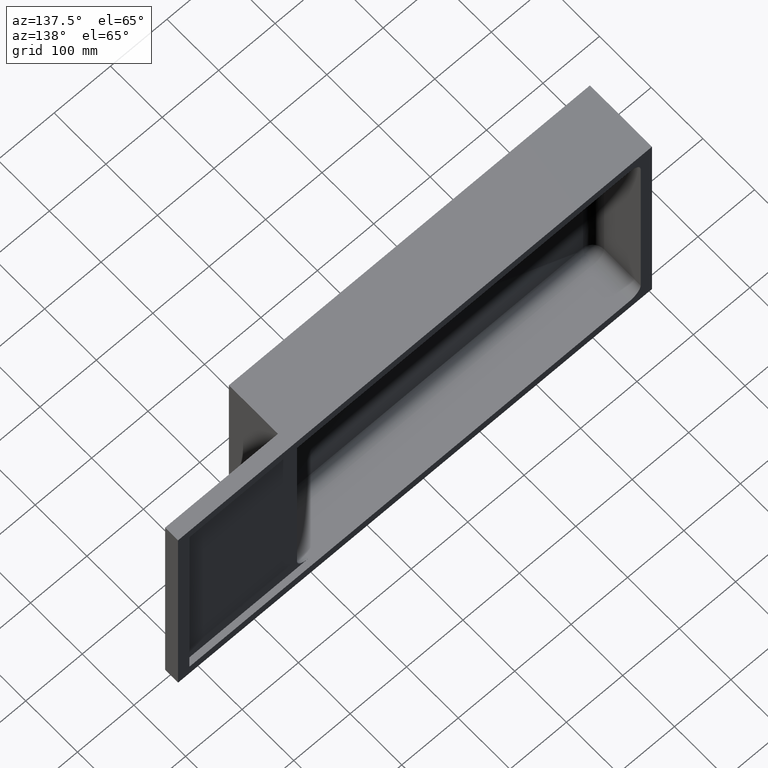
[diagram: clean part render]
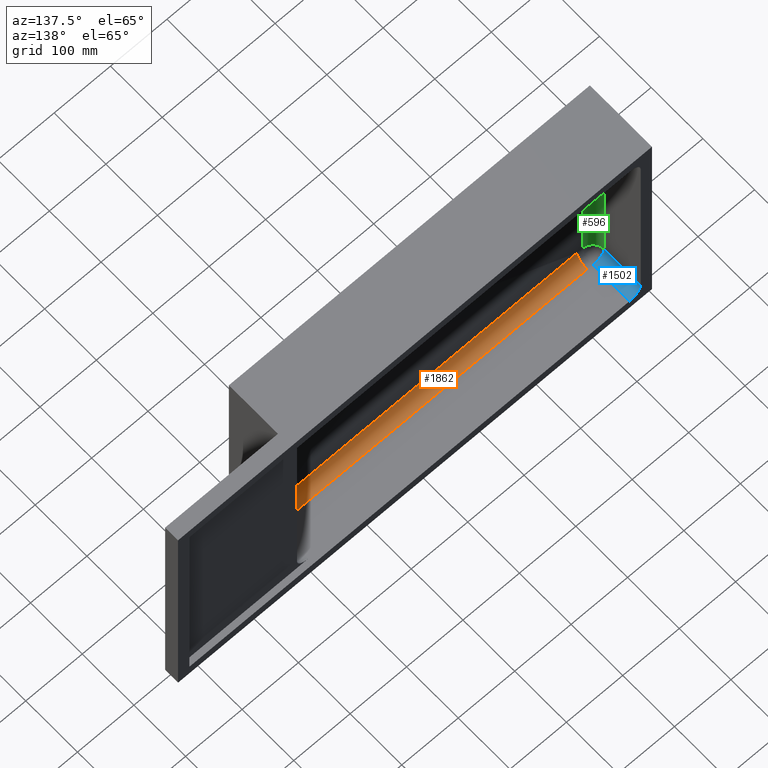
[diagram: same view with three faces highlighted in distinct colors, each labeled with its STEP entity id]
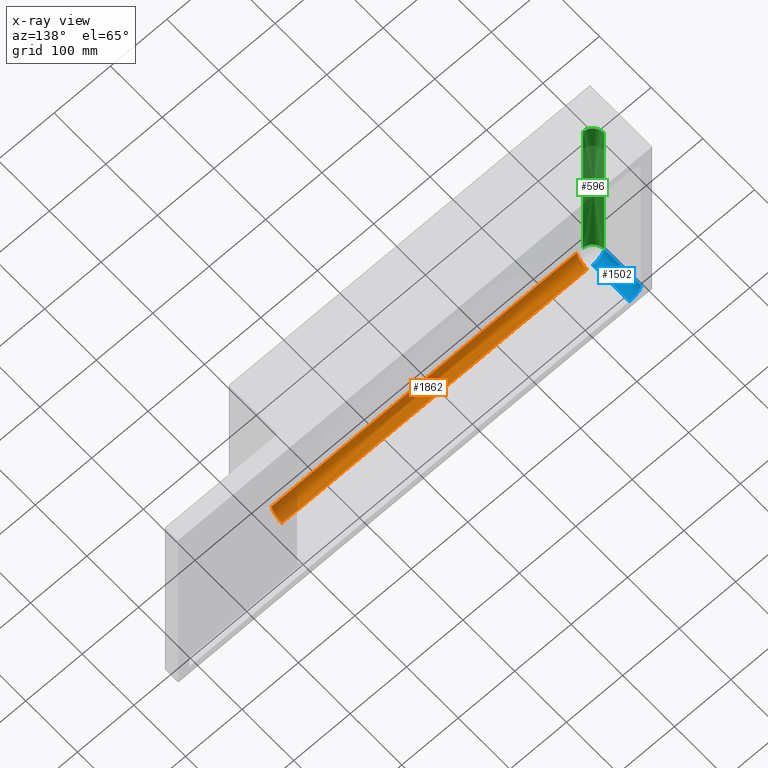
[diagram: x-ray of the same camera — body ghosted, the three highlighted faces saturated]
A machine part, auxiliary view with three faces highlighted in distinct colors.
The next image is the same camera in x-ray (body ghosted, the three faces saturated) — at least one of them is partly hidden behind the body in this view.
Their STEP definitions:

[orange] entity #1862 — the highlighted face is a freeform B-spline surface patch.
#37 = CARTESIAN_POINT ( 'NONE',  ( 139.6214174718604681, 48.62551107600921796, -420.0000000000001137 ) ) ;
#77 = DIRECTION ( 'NONE',  ( -0.9999999230467002675, 0.0003923093085508458713, -0.0000000000000000000 ) ) ;
#86 = CARTESIAN_POINT ( 'NONE',  ( 229.8107049548678162, 48.58877967900190953, -420.0000000000000568 ) ) ;
#250 = DIRECTION ( 'NONE',  ( -0.0003923093085500539701, 0.9999999230467002675, 0.0000000000000000000 ) ) ;
#265 = CARTESIAN_POINT ( 'NONE',  ( 139.6214175273045157, 48.62551107585181143, -420.0000000000000568 ) ) ;
#274 = CARTESIAN_POINT ( 'NONE',  ( 590.5751947692087924, 29.98909426689062840, -419.9999999999999432 ) ) ;
#318 = EDGE_CURVE ( 'NONE', #619, #2076, #2284, .T. ) ;
#386 = CARTESIAN_POINT ( 'NONE',  ( 49.43213035187435622, 48.66089317560069816, -420.0000000000000568 ) ) ;
#387 = CARTESIAN_POINT ( 'NONE',  ( 49.42430265473844742, 28.70802346306557951, -401.3721985868512547 ) ) ;
#421 =( BOUNDED_SURFACE ( )  B_SPLINE_SURFACE ( 3, 2, ( 
 ( #443, #1188, #1933 ),
 ( #265, #1007, #1744 ),
 ( #86, #818, #1560 ),
 ( #2308, #636, #1376 ),
 ( #2125, #455, #1197 ),
 ( #1943, #274, #1015 ) ),
 .UNSPECIFIED., .F., .F., .T. ) 
 B_SPLINE_SURFACE_WITH_KNOTS ( ( 4, 2, 4 ),
 ( 3, 3 ),
 ( 0.09382550108589217397, 0.3643933832699478015, 0.6349612654540034429 ),
 ( 0.0000000000000000000, 1.000000000000000000 ),
 .UNSPECIFIED. ) 
 GEOMETRIC_REPRESENTATION_ITEM ( )  RATIONAL_B_SPLINE_SURFACE ( (
 ( 1.000000000000000000, 0.7309616711369185671, 1.000000000000000000),
 ( 1.000000000000000000, 0.7316704443245953815, 1.000000000000000000),
 ( 1.000000000000000000, 0.7324765506887280786, 1.000000000000000000),
 ( 1.000000000000000000, 0.7324765506887280786, 1.000000000000000000),
 ( 1.000000000000000000, 0.7316704443245929390, 1.000000000000000000),
 ( 1.000000000000000000, 0.7309616711369203435, 1.000000000000000000) ) ) 
 REPRESENTATION_ITEM ( '' )  SURFACE ( )  );
#443 = CARTESIAN_POINT ( 'NONE',  ( 49.43213035187426385, 48.66089317560069816, -420.0000000000000568 ) ) ;
#455 = CARTESIAN_POINT ( 'NONE',  ( 500.4738899062993482, 29.99232069777427512, -420.0000000100032480 ) ) ;
#567 = CARTESIAN_POINT ( 'NONE',  ( 410.1919054622273393, 28.64220499501312034, -401.4608758922395850 ) ) ;
#584 = CARTESIAN_POINT ( 'NONE',  ( 590.5678696481256793, 48.66089317560069816, -419.9999999999999432 ) ) ;
#619 = VERTEX_POINT ( 'NONE', #386 ) ;
#636 = CARTESIAN_POINT ( 'NONE',  ( 410.1938669815074263, 30.00000000453711380, -419.9999999949936296 ) ) ;
#771 = CARTESIAN_POINT ( 'NONE',  ( 229.8107049560396717, 48.58877967900191663, -420.0000000000002842 ) ) ;
#807 = DIRECTION ( 'NONE',  ( 0.0003923093085507478595, 0.9999999230467002675, 0.0000000000000000000 ) ) ;
#818 = CARTESIAN_POINT ( 'NONE',  ( 229.8061330184910105, 29.99999999546281160, -420.0000000050065410 ) ) ;
#916 = AXIS2_PLACEMENT_3D ( 'NONE', #1731, #77, #807 ) ;
#917 = EDGE_LOOP ( 'NONE', ( #990, #2399, #2292, #2397 ) ) ;
#962 = EDGE_CURVE ( 'NONE', #1529, #1839, #1380, .T. ) ;
#990 = ORIENTED_EDGE ( 'NONE', *, *, #1271, .F. ) ;
#1007 = CARTESIAN_POINT ( 'NONE',  ( 139.5261100937005665, 29.99232072528331727, -419.9999999949982907 ) ) ;
#1015 = CARTESIAN_POINT ( 'NONE',  ( 590.5756973452486136, 28.70802346306557595, -401.3721985868510842 ) ) ;
#1038 = B_SPLINE_CURVE_WITH_KNOTS ( 'NONE', 3,
 ( #1692, #37, #771, #1509, #2259, #584 ),
 .UNSPECIFIED., .F., .F.,
 ( 4, 2, 4 ),
 ( 0.02943213257703587715, 0.3000000147504363057, 0.5705678969238368037 ),
 .UNSPECIFIED. ) ;
#1043 = B_SPLINE_CURVE_WITH_KNOTS ( 'NONE', 3,
 ( #1492, #2242, #567, #1309, #2056, #387 ),
 .UNSPECIFIED., .F., .F.,
 ( 4, 2, 4 ),
 ( 0.001481527144366978502, 0.2720572525340454462, 0.5426329779237237805 ),
 .UNSPECIFIED. ) ;
#1067 = AXIS2_PLACEMENT_3D ( 'NONE', #1172, #1915, #250 ) ;
#1131 = CARTESIAN_POINT ( 'NONE',  ( 49.42430265473844742, 28.70802346306557951, -401.3721985868512547 ) ) ;
#1172 = CARTESIAN_POINT ( 'NONE',  ( 590.5678696481256793, 48.66089317560069816, -400.0000000000000568 ) ) ;
#1188 = CARTESIAN_POINT ( 'NONE',  ( 49.42480523079131416, 29.98909426689053248, -420.0000000000000568 ) ) ;
#1197 = CARTESIAN_POINT ( 'NONE',  ( 500.3870904029905660, 28.67547251339612302, -401.4133619008571259 ) ) ;
#1271 = EDGE_CURVE ( 'NONE', #1529, #2076, #1043, .T. ) ;
#1309 = CARTESIAN_POINT ( 'NONE',  ( 229.8080952572782110, 28.64220499485291072, -401.4608758924691756 ) ) ;
#1376 = CARTESIAN_POINT ( 'NONE',  ( 410.1942009308504566, 28.64220499475149140, -401.4608758898758083 ) ) ;
#1380 = CIRCLE ( 'NONE', #1067, 20.00000000000000000 ) ;
#1492 = CARTESIAN_POINT ( 'NONE',  ( 590.5756973452487273, 28.70802346306558661, -401.3721985868512547 ) ) ;
#1509 = CARTESIAN_POINT ( 'NONE',  ( 410.1892950439587935, 48.58877967900188821, -420.0000000000000000 ) ) ;
#1529 = VERTEX_POINT ( 'NONE', #1707 ) ;
#1558 = EDGE_CURVE ( 'NONE', #619, #1839, #1038, .T. ) ;
#1560 = CARTESIAN_POINT ( 'NONE',  ( 229.8057990691480086, 28.64220499511453966, -401.4608758948328955 ) ) ;
#1692 = CARTESIAN_POINT ( 'NONE',  ( 49.43213035187435622, 48.66089317560069816, -420.0000000000000568 ) ) ;
#1707 = CARTESIAN_POINT ( 'NONE',  ( 590.5756973452487273, 28.70802346306558661, -401.3721985868512547 ) ) ;
#1721 = CARTESIAN_POINT ( 'NONE',  ( 590.5678696481256793, 48.66089317560069816, -419.9999999999999432 ) ) ;
#1731 = CARTESIAN_POINT ( 'NONE',  ( 49.43213035187422832, 48.66089317560069816, -400.0000000000000000 ) ) ;
#1744 = CARTESIAN_POINT ( 'NONE',  ( 139.6129095970134699, 28.67547251271443542, -401.4133618909421557 ) ) ;
#1839 = VERTEX_POINT ( 'NONE', #1721 ) ;
#1862 = ADVANCED_FACE ( 'NONE', ( #2113 ), #421, .F. ) ;
#1915 = DIRECTION ( 'NONE',  ( 0.9999999230467002675, 0.0003923093085504811999, -0.0000000000000000000 ) ) ;
#1933 = CARTESIAN_POINT ( 'NONE',  ( 49.42430265475137219, 28.70802346306557240, -401.3721985868511410 ) ) ;
#1943 = CARTESIAN_POINT ( 'NONE',  ( 590.5678696481256793, 48.66089317560069816, -419.9999999999999432 ) ) ;
#2056 = CARTESIAN_POINT ( 'NONE',  ( 139.6161964801647457, 28.67547132688467926, -401.4133633980271156 ) ) ;
#2076 = VERTEX_POINT ( 'NONE', #1131 ) ;
#2113 = FACE_OUTER_BOUND ( 'NONE', #917, .T. ) ;
#2125 = CARTESIAN_POINT ( 'NONE',  ( 500.3785824726969622, 48.62551107521924365, -419.9999999999999432 ) ) ;
#2242 = CARTESIAN_POINT ( 'NONE',  ( 500.3838041494443019, 28.67547132711193214, -401.4133633977399995 ) ) ;
#2259 = CARTESIAN_POINT ( 'NONE',  ( 500.3785825281395887, 48.62551107600920375, -420.0000000000000000 ) ) ;
#2284 = CIRCLE ( 'NONE', #916, 20.00000000000000000 ) ;
#2292 = ORIENTED_EDGE ( 'NONE', *, *, #1558, .F. ) ;
#2308 = CARTESIAN_POINT ( 'NONE',  ( 410.1892950451306206, 48.58877967900190953, -420.0000000000000568 ) ) ;
#2397 = ORIENTED_EDGE ( 'NONE', *, *, #318, .T. ) ;
#2399 = ORIENTED_EDGE ( 'NONE', *, *, #962, .T. ) ;

[blue] entity #1502 — the highlighted cylindrical surface (edge-blend (fillet) strip) has radius 20 mm, axis along (0, -1, 0).
#14 = VERTEX_POINT ( 'NONE', #1062 ) ;
#16 = ORIENTED_EDGE ( 'NONE', *, *, #485, .F. ) ;
#42 = DIRECTION ( 'NONE',  ( 0.0000000000000000000, -1.000000000000000000, 0.0000000000000000000 ) ) ;
#202 = CARTESIAN_POINT ( 'NONE',  ( 39.99999999999999289, 49.09846963104313744, -420.0000000000000568 ) ) ;
#231 = DIRECTION ( 'NONE',  ( 0.0000000000000000000, 0.0000000000000000000, -1.000000000000000000 ) ) ;
#290 = AXIS2_PLACEMENT_3D ( 'NONE', #1154, #1899, #231 ) ;
#384 = CARTESIAN_POINT ( 'NONE',  ( 20.00000000000000000, 120.0000000000000000, -400.0000000000000000 ) ) ;
#409 = CYLINDRICAL_SURFACE ( 'NONE', #290, 20.00000000000001776 ) ;
#426 = DIRECTION ( 'NONE',  ( 0.0000000000000000000, 1.000000000000000000, 0.0000000000000000000 ) ) ;
#485 = EDGE_CURVE ( 'NONE', #14, #1328, #1870, .T. ) ;
#663 = EDGE_CURVE ( 'NONE', #1362, #2075, #789, .T. ) ;
#676 = AXIS2_PLACEMENT_3D ( 'NONE', #2012, #900, #1642 ) ;
#717 = VECTOR ( 'NONE', #943, 1000.000000000000000 ) ;
#775 = DIRECTION ( 'NONE',  ( 0.0000000000000000000, 0.0000000000000000000, -1.000000000000000000 ) ) ;
#789 = LINE ( 'NONE', #2095, #834 ) ;
#834 = VECTOR ( 'NONE', #426, 1000.000000000000000 ) ;
#900 = DIRECTION ( 'NONE',  ( 0.0000000000000000000, 1.000000000000000000, 0.0000000000000000000 ) ) ;
#911 = CIRCLE ( 'NONE', #1966, 20.00000000000001776 ) ;
#943 = DIRECTION ( 'NONE',  ( -0.0000000000000000000, -1.000000000000000000, -0.0000000000000000000 ) ) ;
#998 = CIRCLE ( 'NONE', #676, 20.00000000000001776 ) ;
#1062 = CARTESIAN_POINT ( 'NONE',  ( 40.00000000000003553, 120.0000000000000000, -420.0000000000000568 ) ) ;
#1084 = CARTESIAN_POINT ( 'NONE',  ( 39.99999999999999289, 49.09616694392557434, -420.0000000000000568 ) ) ;
#1096 = CARTESIAN_POINT ( 'NONE',  ( 20.00000000000001066, 49.09616694392557434, -400.0000000000000000 ) ) ;
#1154 = CARTESIAN_POINT ( 'NONE',  ( 39.99999999999999289, -721.1102550927979564, -400.0000000000000000 ) ) ;
#1179 = EDGE_CURVE ( 'NONE', #1328, #1362, #998, .T. ) ;
#1304 = ORIENTED_EDGE ( 'NONE', *, *, #1486, .F. ) ;
#1328 = VERTEX_POINT ( 'NONE', #1084 ) ;
#1362 = VERTEX_POINT ( 'NONE', #1096 ) ;
#1486 = EDGE_CURVE ( 'NONE', #2075, #14, #911, .T. ) ;
#1496 = ORIENTED_EDGE ( 'NONE', *, *, #1179, .F. ) ;
#1502 = ADVANCED_FACE ( 'NONE', ( #1513 ), #409, .F. ) ;
#1513 = FACE_OUTER_BOUND ( 'NONE', #1599, .T. ) ;
#1562 = ORIENTED_EDGE ( 'NONE', *, *, #663, .F. ) ;
#1599 = EDGE_LOOP ( 'NONE', ( #1304, #1562, #1496, #16 ) ) ;
#1642 = DIRECTION ( 'NONE',  ( 0.0000000000000000000, 0.0000000000000000000, 1.000000000000000000 ) ) ;
#1697 = CARTESIAN_POINT ( 'NONE',  ( 39.99999999999999289, 120.0000000000000000, -400.0000000000000000 ) ) ;
#1870 = LINE ( 'NONE', #202, #717 ) ;
#1899 = DIRECTION ( 'NONE',  ( 0.0000000000000000000, -1.000000000000000000, 0.0000000000000000000 ) ) ;
#1966 = AXIS2_PLACEMENT_3D ( 'NONE', #1697, #42, #775 ) ;
#2012 = CARTESIAN_POINT ( 'NONE',  ( 39.99999999999999289, 49.09616694392557434, -400.0000000000000000 ) ) ;
#2075 = VERTEX_POINT ( 'NONE', #384 ) ;
#2095 = CARTESIAN_POINT ( 'NONE',  ( 20.00000000000000000, 119.9999999999997726, -400.0000000000000000 ) ) ;

[green] entity #596 — the highlighted face is a freeform B-spline surface patch.
#18 = CARTESIAN_POINT ( 'NONE',  ( 20.00000000000001776, 49.08939118332454399, -340.0000001822882041 ) ) ;
#26 = EDGE_CURVE ( 'NONE', #1962, #2402, #408, .T. ) ;
#137 = DIRECTION ( 'NONE',  ( 0.0000000000000000000, 0.0001129293350880268679, 0.9999999936234827969 ) ) ;
#153 = CARTESIAN_POINT ( 'NONE',  ( 20.00000000000000711, 49.08939118379863942, -99.99999980915740139 ) ) ;
#194 = CARTESIAN_POINT ( 'NONE',  ( 19.99999999999999289, 49.08499730588280130, -280.0000002268363914 ) ) ;
#370 = CARTESIAN_POINT ( 'NONE',  ( 19.99999999999999289, 49.08499730588280130, -159.9999997731635233 ) ) ;
#408 = CIRCLE ( 'NONE', #1688, 20.00000000000000711 ) ;
#444 = CARTESIAN_POINT ( 'NONE',  ( 39.99999999999997158, 49.09616694392557434, -400.0000000000000568 ) ) ;
#475 = CARTESIAN_POINT ( 'NONE',  ( 20.00000000000001066, 49.09616694392557434, -39.99999999999996447 ) ) ;
#549 = CARTESIAN_POINT ( 'NONE',  ( 20.00000000000001066, 49.08939118353352882, -99.99999981771212276 ) ) ;
#566 = CARTESIAN_POINT ( 'NONE',  ( 20.00000000000001421, 29.99861880451137708, -400.0021566734271232 ) ) ;
#591 = CARTESIAN_POINT ( 'NONE',  ( 39.05883391936406213, 29.10276066429974762, -219.9999995806527977 ) ) ;
#596 = ADVANCED_FACE ( 'NONE', ( #1658 ), #1336, .F. ) ;
#624 = EDGE_CURVE ( 'NONE', #1511, #2402, #1390, .T. ) ;
#629 = AXIS2_PLACEMENT_3D ( 'NONE', #444, #1189, #1934 ) ;
#736 = CARTESIAN_POINT ( 'NONE',  ( 20.00000000000001066, 49.09616694392557434, -40.00000000000000711 ) ) ;
#753 = CARTESIAN_POINT ( 'NONE',  ( 19.99999999989595523, 29.99936838448326881, -340.0131583141716192 ) ) ;
#876 = DIRECTION ( 'NONE',  ( 1.040834085586083862E-15, 0.9999999936234825748, -0.0001129293350880799667 ) ) ;
#893 = CARTESIAN_POINT ( 'NONE',  ( 20.00000000000000355, 49.08060342796696318, -220.0000002643098753 ) ) ;
#937 = CARTESIAN_POINT ( 'NONE',  ( 20.00000000093674402, 30.00000000031226932, -280.0008728213363725 ) ) ;
#975 = CARTESIAN_POINT ( 'NONE',  ( 39.07720946647725668, 29.11746697268403139, -400.0022561813178754 ) ) ;
#1096 = CARTESIAN_POINT ( 'NONE',  ( 20.00000000000001066, 49.09616694392557434, -400.0000000000000000 ) ) ;
#1120 = CARTESIAN_POINT ( 'NONE',  ( 19.99999999906324177, 29.99999999968776621, -159.9991271786635707 ) ) ;
#1189 = DIRECTION ( 'NONE',  ( 0.0000000000000000000, 0.0001129293350880507745, -0.9999999936234827969 ) ) ;
#1293 = CARTESIAN_POINT ( 'NONE',  ( 19.99999999875124601, 29.99936838375470316, -99.98684168582889242 ) ) ;
#1308 = CARTESIAN_POINT ( 'NONE',  ( 39.07720946647724247, 29.11746697268403494, -400.0022561813181596 ) ) ;
#1334 = CARTESIAN_POINT ( 'NONE',  ( 39.06934505560822402, 29.11105437471253410, -99.99849541024900645 ) ) ;
#1336 =( BOUNDED_SURFACE ( )  B_SPLINE_SURFACE ( 3, 2, ( 
 ( #736, #1471, #2225 ),
 ( #549, #1293, #2041 ),
 ( #370, #1120, #1860 ),
 ( #194, #937, #1673 ),
 ( #18, #753, #1491 ),
 ( #2241, #566, #1308 ) ),
 .UNSPECIFIED., .F., .F., .F. ) 
 B_SPLINE_SURFACE_WITH_KNOTS ( ( 4, 2, 4 ),
 ( 3, 3 ),
 ( 0.1733788752512179232, 0.3533788758268111563, 0.5333788764024043338 ),
 ( 0.0000000000000000000, 1.000000000000000000 ),
 .UNSPECIFIED. ) 
 GEOMETRIC_REPRESENTATION_ITEM ( )  RATIONAL_B_SPLINE_SURFACE ( (
 ( 1.000000000000000000, 0.7232356208996273406, 1.000000000000000000),
 ( 1.000000000000000000, 0.7233736452677226314, 1.000000000000000000),
 ( 1.000000000000000000, 0.7234623437421429104, 1.000000000000000000),
 ( 1.000000000000000000, 0.7234623437421429104, 1.000000000000000000),
 ( 1.000000000000000000, 0.7233736452677229645, 1.000000000000000000),
 ( 1.000000000000000000, 0.7232356208996273406, 1.000000000000000000) ) ) 
 REPRESENTATION_ITEM ( '' )  SURFACE ( )  );
#1362 = VERTEX_POINT ( 'NONE', #1096 ) ;
#1385 = EDGE_LOOP ( 'NONE', ( #2144, #2272, #2336, #2304 ) ) ;
#1390 = B_SPLINE_CURVE_WITH_KNOTS ( 'NONE', 3,
 ( #1517, #2267, #591, #1334, #2082 ),
 .UNSPECIFIED., .F., .F.,
 ( 4, 1, 4 ),
 ( 0.007278900702198024160, 0.1872811581794933122, 0.3672834156567885699 ),
 .UNSPECIFIED. ) ;
#1471 = CARTESIAN_POINT ( 'NONE',  ( 20.00000000000000711, 29.99861880451137708, -39.99784332657306862 ) ) ;
#1491 = CARTESIAN_POINT ( 'NONE',  ( 39.06934509199672334, 29.11105440522533527, -340.0017896663365491 ) ) ;
#1511 = VERTEX_POINT ( 'NONE', #975 ) ;
#1517 = CARTESIAN_POINT ( 'NONE',  ( 39.07720946647725668, 29.11746697268403139, -400.0022561813178754 ) ) ;
#1635 = CARTESIAN_POINT ( 'NONE',  ( 20.00000000000001421, 49.08939118379865363, -340.0000001908425702 ) ) ;
#1658 = FACE_OUTER_BOUND ( 'NONE', #1385, .T. ) ;
#1673 = CARTESIAN_POINT ( 'NONE',  ( 39.06408948811300519, 29.10690751947580424, -280.0009136561720311 ) ) ;
#1684 = CIRCLE ( 'NONE', #629, 20.00000000000000711 ) ;
#1688 = AXIS2_PLACEMENT_3D ( 'NONE', #1803, #137, #876 ) ;
#1710 = EDGE_CURVE ( 'NONE', #1962, #1362, #1742, .T. ) ;
#1742 = B_SPLINE_CURVE_WITH_KNOTS ( 'NONE', 3,
 ( #1819, #153, #893, #1635, #2381 ),
 .UNSPECIFIED., .F., .F.,
 ( 4, 1, 4 ),
 ( 0.02000000013255749665, 0.2000000007075123376, 0.3800000012824671369 ),
 .UNSPECIFIED. ) ;
#1765 = CARTESIAN_POINT ( 'NONE',  ( 39.07720946647723537, 29.11746697268403139, -39.99774381868190432 ) ) ;
#1803 = CARTESIAN_POINT ( 'NONE',  ( 40.00000000000000000, 49.09616694392557434, -40.00000000000000711 ) ) ;
#1819 = CARTESIAN_POINT ( 'NONE',  ( 20.00000000000001066, 49.09616694392557434, -39.99999999999996447 ) ) ;
#1860 = CARTESIAN_POINT ( 'NONE',  ( 39.06408948685700722, 29.10690751953464428, -159.9990863438279121 ) ) ;
#1934 = DIRECTION ( 'NONE',  ( 0.0000000000000000000, 0.9999999936234825748, 0.0001129293350887738560 ) ) ;
#1962 = VERTEX_POINT ( 'NONE', #475 ) ;
#2041 = CARTESIAN_POINT ( 'NONE',  ( 39.06934509198843131, 29.11105440522567633, -99.99821033366369250 ) ) ;
#2082 = CARTESIAN_POINT ( 'NONE',  ( 39.07720946647723537, 29.11746697268403139, -39.99774381868190432 ) ) ;
#2144 = ORIENTED_EDGE ( 'NONE', *, *, #1710, .F. ) ;
#2225 = CARTESIAN_POINT ( 'NONE',  ( 39.07720946647723537, 29.11746697268403494, -39.99774381868194695 ) ) ;
#2241 = CARTESIAN_POINT ( 'NONE',  ( 20.00000000000001776, 49.09616694392557434, -400.0000000000001137 ) ) ;
#2256 = EDGE_CURVE ( 'NONE', #1511, #1362, #1684, .T. ) ;
#2267 = CARTESIAN_POINT ( 'NONE',  ( 39.06934505560234072, 29.11105437470774149, -340.0015045450059574 ) ) ;
#2272 = ORIENTED_EDGE ( 'NONE', *, *, #26, .T. ) ;
#2304 = ORIENTED_EDGE ( 'NONE', *, *, #2256, .T. ) ;
#2336 = ORIENTED_EDGE ( 'NONE', *, *, #624, .F. ) ;
#2381 = CARTESIAN_POINT ( 'NONE',  ( 20.00000000000001066, 49.09616694392557434, -400.0000000000000000 ) ) ;
#2402 = VERTEX_POINT ( 'NONE', #1765 ) ;